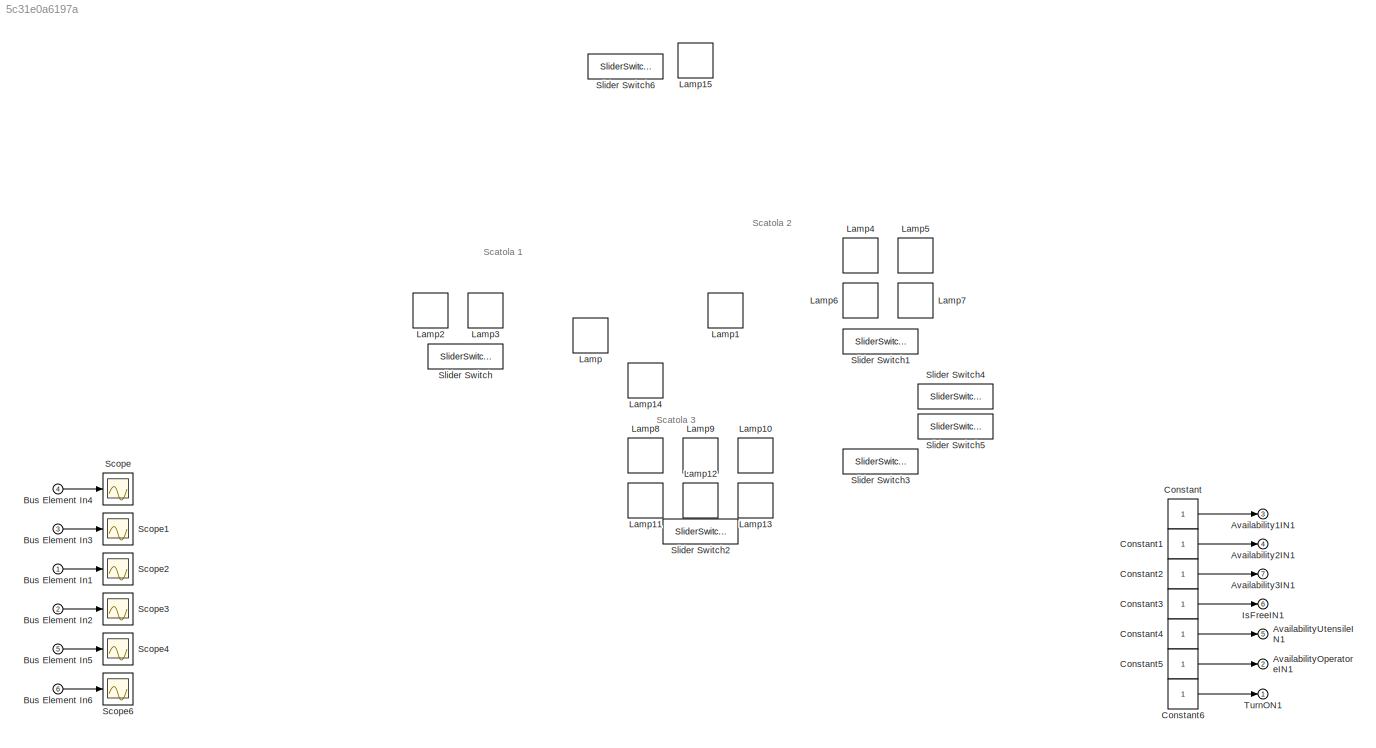
MODEL slx_5c31e0a6197a
KIND model
CONFIG AbsTol = auto
CONFIG EnableMultiTasking = off
CONFIG FixedStep = auto
CONFIG MaxStep = auto
CONFIG MinStep = auto
CONFIG RelTol = 1e-3
CONFIG SampleTimeConstraint = Unconstrained
CONFIG Solver = VariableStepAuto
CONFIG SolverName = VariableStepAuto
CONFIG StartTime = 0.0
CONFIG StopTime = inf
BLOCK [Outport] Availability1IN1
  IconDisplay = Port number
  Port = 3
BLOCK [Outport] Availability2IN1
  IconDisplay = Port number
  Port = 4
BLOCK [Outport] Availability3IN1
  IconDisplay = Port number
  Port = 7
BLOCK [Outport] AvailabilityOperatoreIN1
  IconDisplay = Port number
  Port = 2
BLOCK [Outport] AvailabilityUtensileIN1
  IconDisplay = Port number
  Port = 5
BLOCK [Inport] Bus Element In1
  IconDisplay = Port number
BLOCK [Inport] Bus Element In2
  IconDisplay = Port number
  Port = 2
BLOCK [Inport] Bus Element In3
  IconDisplay = Port number
  Port = 3
BLOCK [Inport] Bus Element In4
  IconDisplay = Port number
  Port = 4
BLOCK [Inport] Bus Element In5
  IconDisplay = Port number
  Port = 5
BLOCK [Inport] Bus Element In6
  IconDisplay = Port number
  Port = 6
BLOCK [Constant] Constant
BLOCK [Constant] Constant1
BLOCK [Constant] Constant2
BLOCK [Constant] Constant3
BLOCK [Constant] Constant4
BLOCK [Constant] Constant5
BLOCK [Constant] Constant6
BLOCK [Outport] IsFreeIN1
  IconDisplay = Port number
  Port = 6
BLOCK [LampBlock] Lamp
BLOCK [LampBlock] Lamp1
BLOCK [LampBlock] Lamp10
BLOCK [LampBlock] Lamp11
BLOCK [LampBlock] Lamp12
BLOCK [LampBlock] Lamp13
BLOCK [LampBlock] Lamp14
BLOCK [LampBlock] Lamp15
BLOCK [LampBlock] Lamp2
BLOCK [LampBlock] Lamp3
BLOCK [LampBlock] Lamp4
BLOCK [LampBlock] Lamp5
BLOCK [LampBlock] Lamp6
BLOCK [LampBlock] Lamp7
BLOCK [LampBlock] Lamp8
BLOCK [LampBlock] Lamp9
BLOCK [Scope] Scope
  Floating = off
  NumInputPorts = 1
  Ports = [1]
  ScopeSpecificationString = Simulink.scopes.TimeScopeBlockCfg('CurrentConfiguration', extmgr.ConfigurationSet(extmgr.Configuration('Core','General UI',true),extmgr.Configuration('Core','Source UI',true),extmgr.Configuration('Sources','WiredSimulink',true,'DataLoggingVariableName','ScopeData1'),extmgr.Configuration('Visuals','Time Domain',true),extmgr.Configuration('Tools','Plot Navigation',true),extmgr.Configuration('Tools',...<+58ch>
BLOCK [Scope] Scope1
  Floating = off
  NumInputPorts = 1
  Ports = [1]
  ScopeSpecificationString = Simulink.scopes.TimeScopeBlockCfg('CurrentConfiguration', extmgr.ConfigurationSet(extmgr.Configuration('Core','General UI',true),extmgr.Configuration('Core','Source UI',true),extmgr.Configuration('Sources','WiredSimulink',true,'DataLoggingVariableName','ScopeData2'),extmgr.Configuration('Visuals','Time Domain',true,'SerializedDisplays',{struct('MinYLimReal','-0.01526','MaxYLimReal','0.00415','YLab...<+1393ch>
BLOCK [Scope] Scope2
  Floating = off
  NumInputPorts = 1
  Ports = [1]
  ScopeSpecificationString = Simulink.scopes.TimeScopeBlockCfg('CurrentConfiguration', extmgr.ConfigurationSet(extmgr.Configuration('Core','General UI',true),extmgr.Configuration('Core','Source UI',true),extmgr.Configuration('Sources','WiredSimulink',true,'DataLoggingVariableName','ScopeData3'),extmgr.Configuration('Visuals','Time Domain',true),extmgr.Configuration('Tools','Plot Navigation',true),extmgr.Configuration('Tools',...<+58ch>
BLOCK [Scope] Scope3
  Floating = off
  NumInputPorts = 1
  Ports = [1]
  ScopeSpecificationString = Simulink.scopes.TimeScopeBlockCfg('CurrentConfiguration', extmgr.ConfigurationSet(extmgr.Configuration('Core','General UI',true),extmgr.Configuration('Core','Source UI',true),extmgr.Configuration('Sources','WiredSimulink',true,'DataLoggingVariableName','ScopeData4'),extmgr.Configuration('Visuals','Time Domain',true),extmgr.Configuration('Tools','Plot Navigation',true),extmgr.Configuration('Tools',...<+58ch>
BLOCK [Scope] Scope4
  Floating = off
  NumInputPorts = 1
  Ports = [1]
  ScopeSpecificationString = Simulink.scopes.TimeScopeBlockCfg('CurrentConfiguration', extmgr.ConfigurationSet(extmgr.Configuration('Core','General UI',true),extmgr.Configuration('Core','Source UI',true),extmgr.Configuration('Sources','WiredSimulink',true,'DataLoggingVariableName','ScopeData5'),extmgr.Configuration('Visuals','Time Domain',true),extmgr.Configuration('Tools','Plot Navigation',true),extmgr.Configuration('Tools',...<+58ch>
BLOCK [Scope] Scope6
  Floating = off
  NumInputPorts = 1
  Ports = [1]
  ScopeSpecificationString = Simulink.scopes.TimeScopeBlockCfg('CurrentConfiguration', extmgr.ConfigurationSet(extmgr.Configuration('Core','General UI',true),extmgr.Configuration('Core','Source UI',true),extmgr.Configuration('Sources','WiredSimulink',true,'DataLoggingVariableName','ScopeData6'),extmgr.Configuration('Visuals','Time Domain',true),extmgr.Configuration('Tools','Plot Navigation',true),extmgr.Configuration('Tools',...<+58ch>
BLOCK [SliderSwitchBlock] Slider Switch
BLOCK [SliderSwitchBlock] Slider Switch1
BLOCK [SliderSwitchBlock] Slider Switch2
BLOCK [SliderSwitchBlock] Slider Switch3
BLOCK [SliderSwitchBlock] Slider Switch4
BLOCK [SliderSwitchBlock] Slider Switch5
BLOCK [SliderSwitchBlock] Slider Switch6
BLOCK [Outport] TurnON1
  IconDisplay = Port number
ANNOTATION (root): Scatola 1
ANNOTATION (root): Scatola 2
ANNOTATION (root): Scatola 3
LINE Bus Element In1:1 -> Scope2:1
LINE Bus Element In2:1 -> Scope3:1
LINE Bus Element In3:1 -> Scope1:1
LINE Bus Element In4:1 -> Scope:1
LINE Bus Element In5:1 -> Scope4:1
LINE Bus Element In6:1 -> Scope6:1
LINE Constant1:1 -> Availability2IN1:1
LINE Constant2:1 -> Availability3IN1:1
LINE Constant3:1 -> IsFreeIN1:1
LINE Constant4:1 -> AvailabilityUtensileIN1:1
LINE Constant5:1 -> AvailabilityOperatoreIN1:1
LINE Constant6:1 -> TurnON1:1
LINE Constant:1 -> Availability1IN1:1
